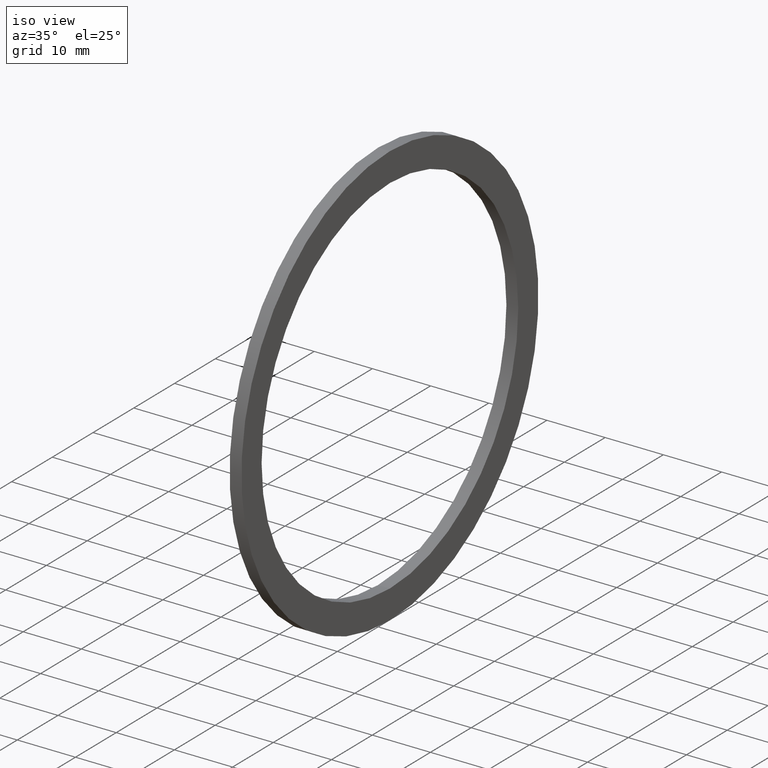
[diagram: clean part render]
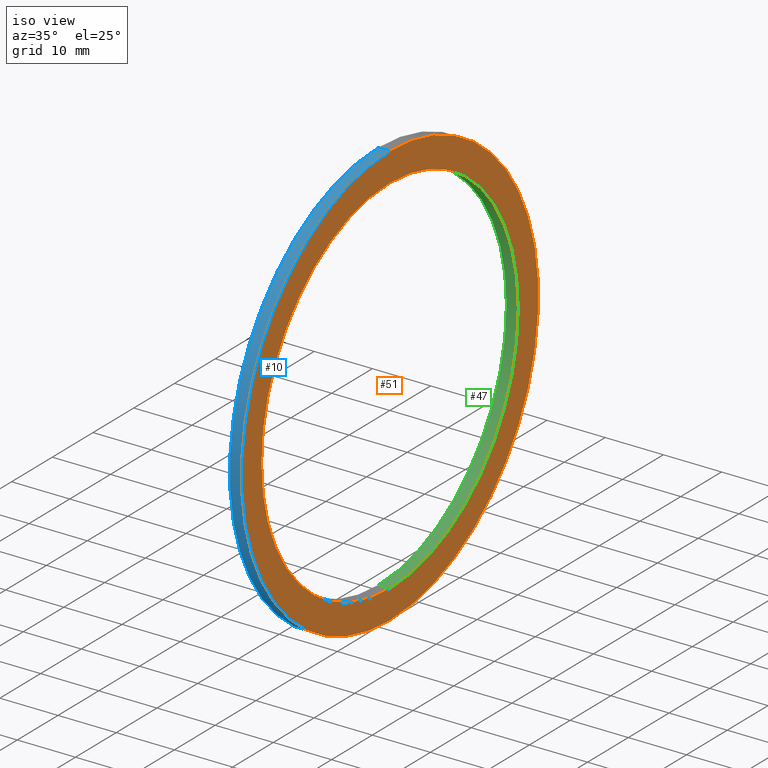
[diagram: same view with three faces highlighted in distinct colors, each labeled with its STEP entity id]
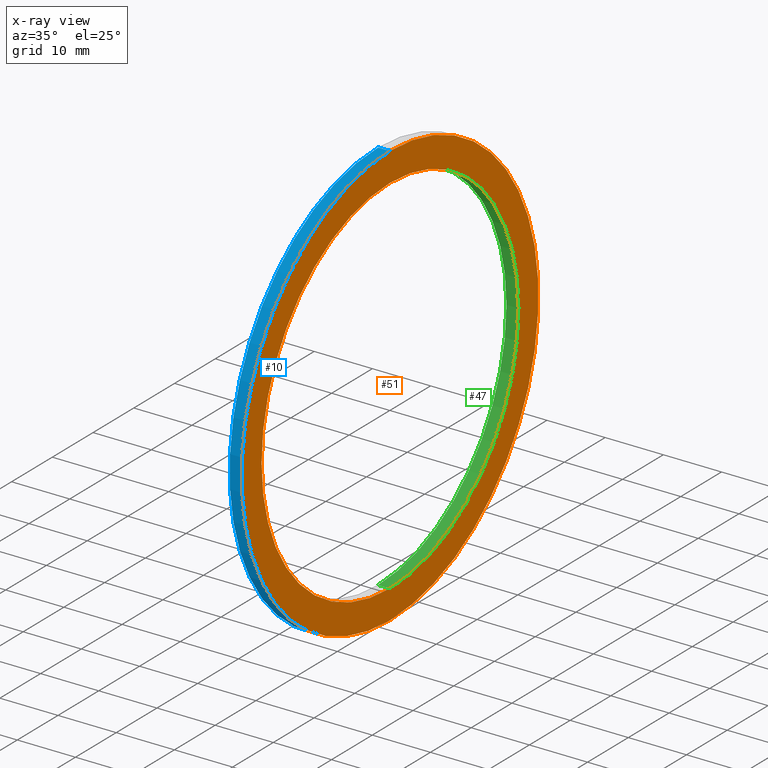
[diagram: x-ray of the same camera — body ghosted, the three highlighted faces saturated]
A machine part, iso view with three faces highlighted in distinct colors.
The next image is the same camera in x-ray (body ghosted, the three faces saturated) — at least one of them is partly hidden behind the body in this view.
Their STEP definitions:

[orange] entity #51 — the highlighted planar face has unit normal (1, 0, 0).
#3 = EDGE_CURVE ( 'NONE', #67, #66, #20, .T. ) ;
#5 = EDGE_LOOP ( 'NONE', ( #43, #36 ) ) ;
#16 = DIRECTION ( 'NONE',  ( 0.0000000000000000000, 0.0000000000000000000, 1.000000000000000000 ) ) ;
#17 = DIRECTION ( 'NONE',  ( -1.000000000000000000, 0.0000000000000000000, 0.0000000000000000000 ) ) ;
#18 = CARTESIAN_POINT ( 'NONE',  ( 0.07999999999999996000, 0.0000000000000000000, 0.0000000000000000000 ) ) ;
#19 = AXIS2_PLACEMENT_3D ( 'NONE', #18, #17, #16 ) ;
#20 = CIRCLE ( 'NONE', #19, 1.435000000000000100 ) ;
#36 = ORIENTED_EDGE ( 'NONE', *, *, #127, .T. ) ;
#37 = EDGE_LOOP ( 'NONE', ( #38, #46 ) ) ;
#38 = ORIENTED_EDGE ( 'NONE', *, *, #65, .F. ) ;
#43 = ORIENTED_EDGE ( 'NONE', *, *, #44, .T. ) ;
#44 = EDGE_CURVE ( 'NONE', #58, #125, #109, .T. ) ;
#46 = ORIENTED_EDGE ( 'NONE', *, *, #3, .F. ) ;
#51 = ADVANCED_FACE ( 'NONE', ( #95, #94 ), #93, .T. ) ;
#58 = VERTEX_POINT ( 'NONE', #142 ) ;
#65 = EDGE_CURVE ( 'NONE', #66, #67, #189, .T. ) ;
#66 = VERTEX_POINT ( 'NONE', #184 ) ;
#67 = VERTEX_POINT ( 'NONE', #183 ) ;
#89 = DIRECTION ( 'NONE',  ( 0.0000000000000000000, 0.0000000000000000000, -1.000000000000000000 ) ) ;
#90 = DIRECTION ( 'NONE',  ( 1.000000000000000000, 0.0000000000000000000, 0.0000000000000000000 ) ) ;
#91 = CARTESIAN_POINT ( 'NONE',  ( 0.08000000000000002900, -1.240000000000000000, 0.0000000000000000000 ) ) ;
#92 = AXIS2_PLACEMENT_3D ( 'NONE', #91, #90, #89 ) ;
#93 = PLANE ( 'NONE',  #92 ) ;
#94 = FACE_OUTER_BOUND ( 'NONE', #37, .T. ) ;
#95 = FACE_BOUND ( 'NONE', #5, .T. ) ;
#106 = DIRECTION ( 'NONE',  ( 0.0000000000000000000, 0.0000000000000000000, 1.000000000000000000 ) ) ;
#107 = DIRECTION ( 'NONE',  ( -1.000000000000000000, 0.0000000000000000000, 0.0000000000000000000 ) ) ;
#108 = AXIS2_PLACEMENT_3D ( 'NONE', #116, #107, #106 ) ;
#109 = CIRCLE ( 'NONE', #108, 1.240000000000000000 ) ;
#116 = CARTESIAN_POINT ( 'NONE',  ( 0.07999999999999996000, 0.0000000000000000000, 0.0000000000000000000 ) ) ;
#125 = VERTEX_POINT ( 'NONE', #139 ) ;
#127 = EDGE_CURVE ( 'NONE', #125, #58, #156, .T. ) ;
#131 = DIRECTION ( 'NONE',  ( 0.0000000000000000000, 0.0000000000000000000, 1.000000000000000000 ) ) ;
#132 = DIRECTION ( 'NONE',  ( -1.000000000000000000, 0.0000000000000000000, 0.0000000000000000000 ) ) ;
#139 = CARTESIAN_POINT ( 'NONE',  ( 0.07999999999999996000, 1.518562030942717800E-016, -1.240000000000000000 ) ) ;
#142 = CARTESIAN_POINT ( 'NONE',  ( 0.07999999999999996000, 0.0000000000000000000, 1.240000000000000000 ) ) ;
#156 = CIRCLE ( 'NONE', #159, 1.240000000000000000 ) ;
#158 = CARTESIAN_POINT ( 'NONE',  ( 0.07999999999999996000, 0.0000000000000000000, 0.0000000000000000000 ) ) ;
#159 = AXIS2_PLACEMENT_3D ( 'NONE', #158, #132, #131 ) ;
#183 = CARTESIAN_POINT ( 'NONE',  ( 0.07999999999999996000, 1.757368156776452000E-016, -1.435000000000000100 ) ) ;
#184 = CARTESIAN_POINT ( 'NONE',  ( 0.07999999999999996000, 0.0000000000000000000, 1.435000000000000100 ) ) ;
#185 = DIRECTION ( 'NONE',  ( 0.0000000000000000000, 0.0000000000000000000, 1.000000000000000000 ) ) ;
#186 = DIRECTION ( 'NONE',  ( -1.000000000000000000, 0.0000000000000000000, 0.0000000000000000000 ) ) ;
#187 = AXIS2_PLACEMENT_3D ( 'NONE', #213, #186, #185 ) ;
#189 = CIRCLE ( 'NONE', #187, 1.435000000000000100 ) ;
#213 = CARTESIAN_POINT ( 'NONE',  ( 0.07999999999999996000, 0.0000000000000000000, 0.0000000000000000000 ) ) ;

[blue] entity #10 — the highlighted cylindrical surface (partial cylindrical patch) has radius 36.449 mm, axis along (-1, 0, 0).
#3 = EDGE_CURVE ( 'NONE', #67, #66, #20, .T. ) ;
#4 = ORIENTED_EDGE ( 'NONE', *, *, #35, .T. ) ;
#6 = EDGE_CURVE ( 'NONE', #24, #49, #15, .T. ) ;
#10 = ADVANCED_FACE ( 'NONE', ( #85 ), #77, .T. ) ;
#12 = DIRECTION ( 'NONE',  ( 0.0000000000000000000, 0.0000000000000000000, 1.000000000000000000 ) ) ;
#13 = DIRECTION ( 'NONE',  ( -1.000000000000000000, 0.0000000000000000000, 0.0000000000000000000 ) ) ;
#14 = AXIS2_PLACEMENT_3D ( 'NONE', #21, #13, #12 ) ;
#15 = CIRCLE ( 'NONE', #14, 1.435000000000000100 ) ;
#16 = DIRECTION ( 'NONE',  ( 0.0000000000000000000, 0.0000000000000000000, 1.000000000000000000 ) ) ;
#17 = DIRECTION ( 'NONE',  ( -1.000000000000000000, 0.0000000000000000000, 0.0000000000000000000 ) ) ;
#18 = CARTESIAN_POINT ( 'NONE',  ( 0.07999999999999996000, 0.0000000000000000000, 0.0000000000000000000 ) ) ;
#19 = AXIS2_PLACEMENT_3D ( 'NONE', #18, #17, #16 ) ;
#20 = CIRCLE ( 'NONE', #19, 1.435000000000000100 ) ;
#21 = CARTESIAN_POINT ( 'NONE',  ( 0.0000000000000000000, 0.0000000000000000000, 0.0000000000000000000 ) ) ;
#24 = VERTEX_POINT ( 'NONE', #78 ) ;
#29 = EDGE_LOOP ( 'NONE', ( #32, #33, #4, #50 ) ) ;
#32 = ORIENTED_EDGE ( 'NONE', *, *, #45, .F. ) ;
#33 = ORIENTED_EDGE ( 'NONE', *, *, #3, .T. ) ;
#35 = EDGE_CURVE ( 'NONE', #66, #49, #73, .T. ) ;
#45 = EDGE_CURVE ( 'NONE', #67, #24, #110, .T. ) ;
#49 = VERTEX_POINT ( 'NONE', #96 ) ;
#50 = ORIENTED_EDGE ( 'NONE', *, *, #6, .F. ) ;
#66 = VERTEX_POINT ( 'NONE', #184 ) ;
#67 = VERTEX_POINT ( 'NONE', #183 ) ;
#73 = LINE ( 'NONE', #121, #120 ) ;
#74 = DIRECTION ( 'NONE',  ( 0.0000000000000000000, 0.0000000000000000000, 1.000000000000000000 ) ) ;
#75 = DIRECTION ( 'NONE',  ( -1.000000000000000000, 0.0000000000000000000, 0.0000000000000000000 ) ) ;
#76 = AXIS2_PLACEMENT_3D ( 'NONE', #79, #75, #74 ) ;
#77 = CYLINDRICAL_SURFACE ( 'NONE', #76, 1.435000000000000100 ) ;
#78 = CARTESIAN_POINT ( 'NONE',  ( 0.0000000000000000000, 1.757368156776452000E-016, -1.435000000000000100 ) ) ;
#79 = CARTESIAN_POINT ( 'NONE',  ( -1.721125226614714300, 0.0000000000000000000, 0.0000000000000000000 ) ) ;
#85 = FACE_OUTER_BOUND ( 'NONE', #29, .T. ) ;
#96 = CARTESIAN_POINT ( 'NONE',  ( 0.0000000000000000000, 0.0000000000000000000, 1.435000000000000100 ) ) ;
#103 = DIRECTION ( 'NONE',  ( -1.000000000000000000, 0.0000000000000000000, 0.0000000000000000000 ) ) ;
#104 = VECTOR ( 'NONE', #103, 39.37007874015748100 ) ;
#105 = CARTESIAN_POINT ( 'NONE',  ( -1.721125226614714300, 1.757368156776452000E-016, -1.435000000000000100 ) ) ;
#110 = LINE ( 'NONE', #105, #104 ) ;
#119 = DIRECTION ( 'NONE',  ( -1.000000000000000000, 0.0000000000000000000, 0.0000000000000000000 ) ) ;
#120 = VECTOR ( 'NONE', #119, 39.37007874015748100 ) ;
#121 = CARTESIAN_POINT ( 'NONE',  ( -1.721125226614714300, 0.0000000000000000000, 1.435000000000000100 ) ) ;
#183 = CARTESIAN_POINT ( 'NONE',  ( 0.07999999999999996000, 1.757368156776452000E-016, -1.435000000000000100 ) ) ;
#184 = CARTESIAN_POINT ( 'NONE',  ( 0.07999999999999996000, 0.0000000000000000000, 1.435000000000000100 ) ) ;

[green] entity #47 — the highlighted cylindrical surface (partial cylindrical patch) has radius 31.496 mm, axis along (-1, 0, 0).
#27 = EDGE_CURVE ( 'NONE', #56, #126, #72, .T. ) ;
#30 = ORIENTED_EDGE ( 'NONE', *, *, #123, .T. ) ;
#31 = ORIENTED_EDGE ( 'NONE', *, *, #27, .T. ) ;
#41 = ORIENTED_EDGE ( 'NONE', *, *, #59, .F. ) ;
#42 = ORIENTED_EDGE ( 'NONE', *, *, #44, .F. ) ;
#44 = EDGE_CURVE ( 'NONE', #58, #125, #109, .T. ) ;
#47 = ADVANCED_FACE ( 'NONE', ( #102 ), #101, .F. ) ;
#48 = EDGE_LOOP ( 'NONE', ( #41, #42, #30, #31 ) ) ;
#56 = VERTEX_POINT ( 'NONE', #181 ) ;
#58 = VERTEX_POINT ( 'NONE', #142 ) ;
#59 = EDGE_CURVE ( 'NONE', #125, #126, #138, .T. ) ;
#68 = DIRECTION ( 'NONE',  ( 0.0000000000000000000, 0.0000000000000000000, 1.000000000000000000 ) ) ;
#69 = DIRECTION ( 'NONE',  ( -1.000000000000000000, 0.0000000000000000000, 0.0000000000000000000 ) ) ;
#70 = CARTESIAN_POINT ( 'NONE',  ( 0.0000000000000000000, 0.0000000000000000000, 0.0000000000000000000 ) ) ;
#71 = AXIS2_PLACEMENT_3D ( 'NONE', #70, #69, #68 ) ;
#72 = CIRCLE ( 'NONE', #71, 1.240000000000000000 ) ;
#97 = DIRECTION ( 'NONE',  ( 0.0000000000000000000, 0.0000000000000000000, 1.000000000000000000 ) ) ;
#98 = DIRECTION ( 'NONE',  ( -1.000000000000000000, 0.0000000000000000000, 0.0000000000000000000 ) ) ;
#99 = CARTESIAN_POINT ( 'NONE',  ( -1.721125226614714300, 0.0000000000000000000, 0.0000000000000000000 ) ) ;
#100 = AXIS2_PLACEMENT_3D ( 'NONE', #99, #98, #97 ) ;
#101 = CYLINDRICAL_SURFACE ( 'NONE', #100, 1.240000000000000000 ) ;
#102 = FACE_OUTER_BOUND ( 'NONE', #48, .T. ) ;
#106 = DIRECTION ( 'NONE',  ( 0.0000000000000000000, 0.0000000000000000000, 1.000000000000000000 ) ) ;
#107 = DIRECTION ( 'NONE',  ( -1.000000000000000000, 0.0000000000000000000, 0.0000000000000000000 ) ) ;
#108 = AXIS2_PLACEMENT_3D ( 'NONE', #116, #107, #106 ) ;
#109 = CIRCLE ( 'NONE', #108, 1.240000000000000000 ) ;
#116 = CARTESIAN_POINT ( 'NONE',  ( 0.07999999999999996000, 0.0000000000000000000, 0.0000000000000000000 ) ) ;
#123 = EDGE_CURVE ( 'NONE', #58, #56, #216, .T. ) ;
#125 = VERTEX_POINT ( 'NONE', #139 ) ;
#126 = VERTEX_POINT ( 'NONE', #209 ) ;
#137 = CARTESIAN_POINT ( 'NONE',  ( -1.721125226614714300, 1.518562030942717800E-016, -1.240000000000000000 ) ) ;
#138 = LINE ( 'NONE', #137, #212 ) ;
#139 = CARTESIAN_POINT ( 'NONE',  ( 0.07999999999999996000, 1.518562030942717800E-016, -1.240000000000000000 ) ) ;
#140 = DIRECTION ( 'NONE',  ( -1.000000000000000000, 0.0000000000000000000, 0.0000000000000000000 ) ) ;
#142 = CARTESIAN_POINT ( 'NONE',  ( 0.07999999999999996000, 0.0000000000000000000, 1.240000000000000000 ) ) ;
#181 = CARTESIAN_POINT ( 'NONE',  ( 0.0000000000000000000, 0.0000000000000000000, 1.240000000000000000 ) ) ;
#190 = DIRECTION ( 'NONE',  ( -1.000000000000000000, 0.0000000000000000000, 0.0000000000000000000 ) ) ;
#209 = CARTESIAN_POINT ( 'NONE',  ( 0.0000000000000000000, 1.518562030942717800E-016, -1.240000000000000000 ) ) ;
#212 = VECTOR ( 'NONE', #190, 39.37007874015748100 ) ;
#214 = VECTOR ( 'NONE', #140, 39.37007874015748100 ) ;
#215 = CARTESIAN_POINT ( 'NONE',  ( -1.721125226614714300, 0.0000000000000000000, 1.240000000000000000 ) ) ;
#216 = LINE ( 'NONE', #215, #214 ) ;